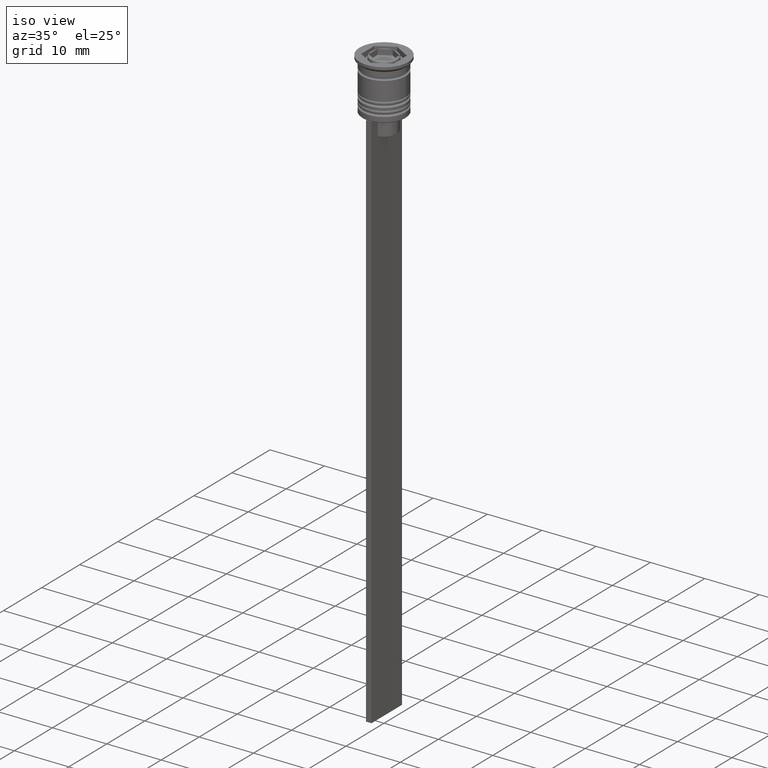
[diagram: clean part render]
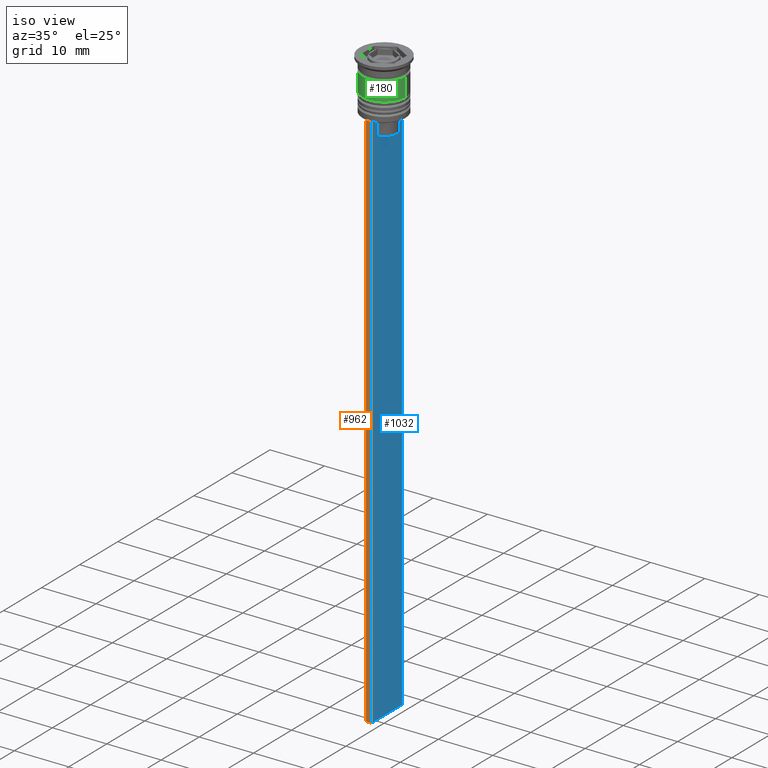
[diagram: same view with three faces highlighted in distinct colors, each labeled with its STEP entity id]
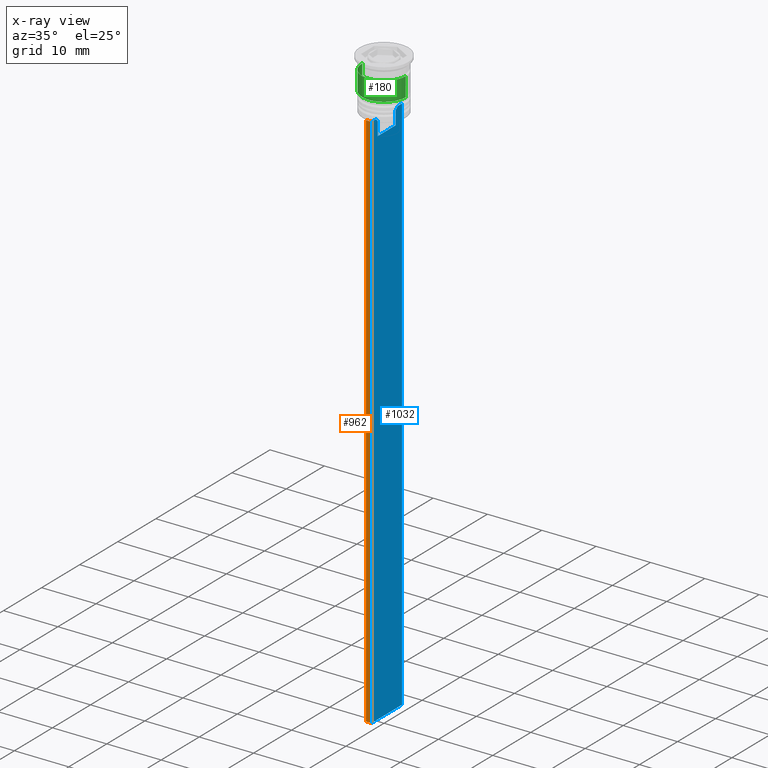
[diagram: x-ray of the same camera — body ghosted, the three highlighted faces saturated]
A machine part, iso view with three faces highlighted in distinct colors.
The next image is the same camera in x-ray (body ghosted, the three faces saturated) — at least one of them is partly hidden behind the body in this view.
Their STEP definitions:

[orange] entity #962 — the highlighted planar face has unit normal (0, -1, -0).
#10 = LINE ( 'NONE', #803, #507 ) ;
#49 = CARTESIAN_POINT ( 'NONE',  ( 0.5000000000000000000, -4.000000000000000000, -1.437742251701450202 ) ) ;
#66 = VERTEX_POINT ( 'NONE', #1998 ) ;
#69 = EDGE_CURVE ( 'NONE', #555, #2411, #2252, .T. ) ;
#112 = DIRECTION ( 'NONE',  ( 0.000000000000000000, 0.000000000000000000, -1.000000000000000000 ) ) ;
#144 = VECTOR ( 'NONE', #287, 1000.000000000000000 ) ;
#151 = DIRECTION ( 'NONE',  ( -1.000000000000000000, 0.000000000000000000, 0.000000000000000000 ) ) ;
#287 = DIRECTION ( 'NONE',  ( 0.000000000000000000, 0.000000000000000000, -1.000000000000000000 ) ) ;
#359 = EDGE_CURVE ( 'NONE', #1882, #555, #10, .T. ) ;
#423 = ORIENTED_EDGE ( 'NONE', *, *, #1094, .T. ) ;
#481 = CARTESIAN_POINT ( 'NONE',  ( -0.5000000000000000000, -4.000000000000000000, -1.437742251701450202 ) ) ;
#507 = VECTOR ( 'NONE', #1550, 1000.000000000000000 ) ;
#509 = ORIENTED_EDGE ( 'NONE', *, *, #1512, .F. ) ;
#518 = CARTESIAN_POINT ( 'NONE',  ( -0.5000000000000000000, -4.000000000000000000, -9.500000000000000000 ) ) ;
#555 = VERTEX_POINT ( 'NONE', #1717 ) ;
#570 = ORIENTED_EDGE ( 'NONE', *, *, #359, .F. ) ;
#622 = VECTOR ( 'NONE', #112, 1000.000000000000000 ) ;
#741 = CARTESIAN_POINT ( 'NONE',  ( 0.5000000000000000000, -4.000000000000000000, -109.5000000000000000 ) ) ;
#803 = CARTESIAN_POINT ( 'NONE',  ( 0.5000000000000000000, -4.000000000000000000, -9.500000000000000000 ) ) ;
#816 = PLANE ( 'NONE',  #1776 ) ;
#885 = LINE ( 'NONE', #481, #144 ) ;
#936 = ORIENTED_EDGE ( 'NONE', *, *, #69, .F. ) ;
#962 = ADVANCED_FACE ( 'NONE', ( #2187 ), #816, .T. ) ;
#1094 = EDGE_CURVE ( 'NONE', #1882, #66, #885, .T. ) ;
#1169 = CARTESIAN_POINT ( 'NONE',  ( 0.5000000000000000000, -4.000000000000000000, -1.437742251701450202 ) ) ;
#1512 = EDGE_CURVE ( 'NONE', #2411, #66, #1909, .T. ) ;
#1550 = DIRECTION ( 'NONE',  ( 1.000000000000000000, 0.000000000000000000, 0.000000000000000000 ) ) ;
#1717 = CARTESIAN_POINT ( 'NONE',  ( 0.5000000000000000000, -4.000000000000000000, -9.500000000000000000 ) ) ;
#1748 = CARTESIAN_POINT ( 'NONE',  ( 0.5000000000000000000, -4.000000000000000000, -109.5000000000000000 ) ) ;
#1776 = AXIS2_PLACEMENT_3D ( 'NONE', #1169, #1995, #1962 ) ;
#1882 = VERTEX_POINT ( 'NONE', #518 ) ;
#1909 = LINE ( 'NONE', #741, #2465 ) ;
#1962 = DIRECTION ( 'NONE',  ( 0.000000000000000000, 0.000000000000000000, -1.000000000000000000 ) ) ;
#1995 = DIRECTION ( 'NONE',  ( 0.000000000000000000, -1.000000000000000000, -0.000000000000000000 ) ) ;
#1998 = CARTESIAN_POINT ( 'NONE',  ( -0.5000000000000000000, -4.000000000000000000, -109.5000000000000000 ) ) ;
#2171 = EDGE_LOOP ( 'NONE', ( #570, #423, #509, #936 ) ) ;
#2187 = FACE_OUTER_BOUND ( 'NONE', #2171, .T. ) ;
#2252 = LINE ( 'NONE', #49, #622 ) ;
#2411 = VERTEX_POINT ( 'NONE', #1748 ) ;
#2465 = VECTOR ( 'NONE', #151, 1000.000000000000000 ) ;

[blue] entity #1032 — the highlighted planar face has unit normal (-1, 0, 0).
#3 = VERTEX_POINT ( 'NONE', #326 ) ;
#11 = CARTESIAN_POINT ( 'NONE',  ( 0.5000000000000000000, -2.347338918861097135, -12.50000000000000000 ) ) ;
#39 = VERTEX_POINT ( 'NONE', #1988 ) ;
#44 = CARTESIAN_POINT ( 'NONE',  ( 0.5000000000000000000, 2.399999999999996803, -12.50000000000000000 ) ) ;
#49 = CARTESIAN_POINT ( 'NONE',  ( 0.5000000000000000000, -4.000000000000000000, -1.437742251701450202 ) ) ;
#69 = EDGE_CURVE ( 'NONE', #555, #2411, #2252, .T. ) ;
#75 = ORIENTED_EDGE ( 'NONE', *, *, #69, .T. ) ;
#101 = EDGE_CURVE ( 'NONE', #461, #125, #1936, .T. ) ;
#112 = DIRECTION ( 'NONE',  ( 0.000000000000000000, 0.000000000000000000, -1.000000000000000000 ) ) ;
#125 = VERTEX_POINT ( 'NONE', #954 ) ;
#186 = LINE ( 'NONE', #810, #2433 ) ;
#189 = CARTESIAN_POINT ( 'NONE',  ( 0.5000000000000000000, 2.347338918861097135, 0.000000000000000000 ) ) ;
#240 = DIRECTION ( 'NONE',  ( 0.000000000000000000, 1.000000000000000000, 0.000000000000000000 ) ) ;
#261 = EDGE_CURVE ( 'NONE', #2163, #555, #447, .T. ) ;
#265 = B_SPLINE_CURVE_WITH_KNOTS ( 'NONE', 3,
 ( #1452, #523, #861, #1285 ),
 .UNSPECIFIED., .F., .F.,
 ( 4, 4 ),
 ( 0.004956812174141191595, 0.005670477137898149653 ),
 .UNSPECIFIED. ) ;
#280 = DIRECTION ( 'NONE',  ( 0.000000000000000000, -1.000000000000000000, 0.000000000000000000 ) ) ;
#289 = CARTESIAN_POINT ( 'NONE',  ( 0.5000000000000000000, -4.000000000000000000, -9.500000000000000000 ) ) ;
#315 = VECTOR ( 'NONE', #1324, 1000.000000000000000 ) ;
#326 = CARTESIAN_POINT ( 'NONE',  ( 0.5000000000000000000, 2.856571371417138572, -9.500000000000000000 ) ) ;
#327 = EDGE_CURVE ( 'NONE', #1827, #1343, #1888, .T. ) ;
#371 = LINE ( 'NONE', #2334, #315 ) ;
#379 = EDGE_CURVE ( 'NONE', #2411, #39, #1185, .T. ) ;
#404 = EDGE_CURVE ( 'NONE', #125, #2259, #1798, .T. ) ;
#416 = DIRECTION ( 'NONE',  ( -1.000000000000000000, 0.000000000000000000, 0.000000000000000000 ) ) ;
#420 = EDGE_CURVE ( 'NONE', #2259, #1827, #489, .T. ) ;
#447 = LINE ( 'NONE', #636, #2511 ) ;
#461 = VERTEX_POINT ( 'NONE', #1060 ) ;
#489 = LINE ( 'NONE', #1863, #1773 ) ;
#523 = CARTESIAN_POINT ( 'NONE',  ( 0.5000000000000000000, 2.687094542495898075, -9.666938847453439010 ) ) ;
#533 = ORIENTED_EDGE ( 'NONE', *, *, #735, .T. ) ;
#555 = VERTEX_POINT ( 'NONE', #1717 ) ;
#599 = ORIENTED_EDGE ( 'NONE', *, *, #2161, .T. ) ;
#622 = VECTOR ( 'NONE', #112, 1000.000000000000000 ) ;
#636 = CARTESIAN_POINT ( 'NONE',  ( 0.5000000000000000000, -4.000000000000000000, -9.500000000000000000 ) ) ;
#690 = DIRECTION ( 'NONE',  ( -0.000000000000000000, -0.000000000000000000, 1.000000000000000000 ) ) ;
#735 = EDGE_CURVE ( 'NONE', #1250, #2327, #186, .T. ) ;
#758 = VECTOR ( 'NONE', #280, 1000.000000000000000 ) ;
#810 = CARTESIAN_POINT ( 'NONE',  ( 0.5000000000000000000, -4.000000000000000000, -9.500000000000000000 ) ) ;
#822 = ORIENTED_EDGE ( 'NONE', *, *, #2135, .T. ) ;
#838 = CARTESIAN_POINT ( 'NONE',  ( 0.5000000000000000000, 3.867815921162741422, -9.500000000000000000 ) ) ;
#861 = CARTESIAN_POINT ( 'NONE',  ( 0.5000000000000000000, 2.517407211010872281, -9.833663366238582171 ) ) ;
#877 = EDGE_LOOP ( 'NONE', ( #822, #599, #1871, #2017, #2311, #1383, #1286, #1893, #75, #1463, #2115, #533 ) ) ;
#908 = VECTOR ( 'NONE', #2290, 1000.000000000000000 ) ;
#921 = CARTESIAN_POINT ( 'NONE',  ( 0.5000000000000000000, 4.000000000000000000, -9.500000000000000000 ) ) ;
#954 = CARTESIAN_POINT ( 'NONE',  ( 0.5000000000000000000, 2.347338918861097135, -12.50000000000000000 ) ) ;
#976 = CARTESIAN_POINT ( 'NONE',  ( 0.5000000000000000000, -2.687095498514037839, -9.666937905752043037 ) ) ;
#1002 = CARTESIAN_POINT ( 'NONE',  ( 0.5000000000000000000, -2.347338918861097135, -10.00000000000000000 ) ) ;
#1020 = CARTESIAN_POINT ( 'NONE',  ( 0.5000000000000000000, -2.347338918861097135, -10.00000000000000000 ) ) ;
#1032 = ADVANCED_FACE ( 'NONE', ( #2344 ), #1410, .F. ) ;
#1056 = DIRECTION ( 'NONE',  ( 0.000000000000000000, -1.000000000000000000, 0.000000000000000000 ) ) ;
#1060 = CARTESIAN_POINT ( 'NONE',  ( 0.5000000000000000000, 2.347338918861097135, -10.00000000000000000 ) ) ;
#1185 = LINE ( 'NONE', #1788, #1474 ) ;
#1222 = VECTOR ( 'NONE', #1352, 1000.000000000000000 ) ;
#1250 = VERTEX_POINT ( 'NONE', #921 ) ;
#1285 = CARTESIAN_POINT ( 'NONE',  ( 0.5000000000000000000, 2.347338918861097135, -10.00000000000000000 ) ) ;
#1286 = ORIENTED_EDGE ( 'NONE', *, *, #1663, .T. ) ;
#1324 = DIRECTION ( 'NONE',  ( 0.000000000000000000, 0.000000000000000000, -1.000000000000000000 ) ) ;
#1342 = VECTOR ( 'NONE', #1056, 1000.000000000000000 ) ;
#1343 = VERTEX_POINT ( 'NONE', #2237 ) ;
#1352 = DIRECTION ( 'NONE',  ( 0.000000000000000000, -1.000000000000000000, 0.000000000000000000 ) ) ;
#1375 = CARTESIAN_POINT ( 'NONE',  ( 0.5000000000000000000, -2.517408374291112416, -9.833662228483172285 ) ) ;
#1383 = ORIENTED_EDGE ( 'NONE', *, *, #327, .T. ) ;
#1397 = CARTESIAN_POINT ( 'NONE',  ( 0.5000000000000000000, -4.000000000000000000, -1.437742251701450202 ) ) ;
#1410 = PLANE ( 'NONE',  #1605 ) ;
#1452 = CARTESIAN_POINT ( 'NONE',  ( 0.5000000000000000000, 2.856571371417138572, -9.500000000000000000 ) ) ;
#1463 = ORIENTED_EDGE ( 'NONE', *, *, #379, .T. ) ;
#1474 = VECTOR ( 'NONE', #240, 1000.000000000000000 ) ;
#1560 = DIRECTION ( 'NONE',  ( 0.000000000000000000, -1.000000000000000000, 0.000000000000000000 ) ) ;
#1605 = AXIS2_PLACEMENT_3D ( 'NONE', #1397, #416, #1800 ) ;
#1663 = EDGE_CURVE ( 'NONE', #1343, #2163, #2029, .T. ) ;
#1717 = CARTESIAN_POINT ( 'NONE',  ( 0.5000000000000000000, -4.000000000000000000, -9.500000000000000000 ) ) ;
#1748 = CARTESIAN_POINT ( 'NONE',  ( 0.5000000000000000000, -4.000000000000000000, -109.5000000000000000 ) ) ;
#1773 = VECTOR ( 'NONE', #690, 1000.000000000000000 ) ;
#1788 = CARTESIAN_POINT ( 'NONE',  ( 0.5000000000000000000, -4.000000000000000000, -109.5000000000000000 ) ) ;
#1798 = LINE ( 'NONE', #44, #1222 ) ;
#1800 = DIRECTION ( 'NONE',  ( 0.000000000000000000, 0.000000000000000000, 1.000000000000000000 ) ) ;
#1827 = VERTEX_POINT ( 'NONE', #1002 ) ;
#1863 = CARTESIAN_POINT ( 'NONE',  ( 0.5000000000000000000, -2.347338918861097135, 0.000000000000000000 ) ) ;
#1871 = ORIENTED_EDGE ( 'NONE', *, *, #101, .T. ) ;
#1888 = B_SPLINE_CURVE_WITH_KNOTS ( 'NONE', 3,
 ( #1020, #1375, #976, #1961 ),
 .UNSPECIFIED., .F., .F.,
 ( 4, 4 ),
 ( 0.01178336557230038467, 0.01249758354768160280 ),
 .UNSPECIFIED. ) ;
#1893 = ORIENTED_EDGE ( 'NONE', *, *, #261, .T. ) ;
#1936 = LINE ( 'NONE', #189, #908 ) ;
#1961 = CARTESIAN_POINT ( 'NONE',  ( 0.5000000000000000000, -2.856571371417138572, -9.500000000000000000 ) ) ;
#1984 = DIRECTION ( 'NONE',  ( 0.000000000000000000, -1.000000000000000000, 0.000000000000000000 ) ) ;
#1988 = CARTESIAN_POINT ( 'NONE',  ( 0.5000000000000000000, 4.000000000000000000, -109.5000000000000000 ) ) ;
#2017 = ORIENTED_EDGE ( 'NONE', *, *, #404, .T. ) ;
#2029 = LINE ( 'NONE', #289, #1342 ) ;
#2057 = CARTESIAN_POINT ( 'NONE',  ( 0.5000000000000000000, -4.000000000000000000, -9.500000000000000000 ) ) ;
#2102 = EDGE_CURVE ( 'NONE', #1250, #39, #371, .T. ) ;
#2115 = ORIENTED_EDGE ( 'NONE', *, *, #2102, .F. ) ;
#2135 = EDGE_CURVE ( 'NONE', #2327, #3, #2443, .T. ) ;
#2161 = EDGE_CURVE ( 'NONE', #3, #461, #265, .T. ) ;
#2163 = VERTEX_POINT ( 'NONE', #2246 ) ;
#2237 = CARTESIAN_POINT ( 'NONE',  ( 0.5000000000000000000, -2.856571371417138572, -9.500000000000000000 ) ) ;
#2246 = CARTESIAN_POINT ( 'NONE',  ( 0.5000000000000000000, -3.867815921162741422, -9.500000000000000000 ) ) ;
#2252 = LINE ( 'NONE', #49, #622 ) ;
#2259 = VERTEX_POINT ( 'NONE', #11 ) ;
#2290 = DIRECTION ( 'NONE',  ( 0.000000000000000000, 0.000000000000000000, -1.000000000000000000 ) ) ;
#2311 = ORIENTED_EDGE ( 'NONE', *, *, #420, .T. ) ;
#2327 = VERTEX_POINT ( 'NONE', #838 ) ;
#2334 = CARTESIAN_POINT ( 'NONE',  ( 0.5000000000000000000, 4.000000000000000000, -1.437742251701450202 ) ) ;
#2344 = FACE_OUTER_BOUND ( 'NONE', #877, .T. ) ;
#2411 = VERTEX_POINT ( 'NONE', #1748 ) ;
#2433 = VECTOR ( 'NONE', #1560, 1000.000000000000000 ) ;
#2443 = LINE ( 'NONE', #2057, #758 ) ;
#2511 = VECTOR ( 'NONE', #1984, 1000.000000000000000 ) ;

[green] entity #180 — the highlighted cylindrical surface (edge-blend (fillet) strip) has radius 4 mm, axis along (-0, -0, 1).
#164 = DIRECTION ( 'NONE',  ( 1.000000000000000000, 0.000000000000000000, 0.000000000000000000 ) ) ;
#180 = ADVANCED_FACE ( 'NONE', ( #2534 ), #2524, .T. ) ;
#301 = DIRECTION ( 'NONE',  ( 1.000000000000000000, 0.000000000000000000, 0.000000000000000000 ) ) ;
#307 = CARTESIAN_POINT ( 'NONE',  ( -4.000000000000000000, 4.898587196589412829E-16, -2.500000000000000000 ) ) ;
#365 = CARTESIAN_POINT ( 'NONE',  ( 0.000000000000000000, 0.000000000000000000, 0.000000000000000000 ) ) ;
#431 = DIRECTION ( 'NONE',  ( -0.000000000000000000, -0.000000000000000000, 1.000000000000000000 ) ) ;
#445 = CARTESIAN_POINT ( 'NONE',  ( 0.000000000000000000, 0.000000000000000000, -6.000000000000000000 ) ) ;
#498 = VERTEX_POINT ( 'NONE', #307 ) ;
#519 = VECTOR ( 'NONE', #2036, 1000.000000000000000 ) ;
#541 = DIRECTION ( 'NONE',  ( -0.000000000000000000, -0.000000000000000000, 1.000000000000000000 ) ) ;
#619 = EDGE_LOOP ( 'NONE', ( #802, #2114, #915, #1175 ) ) ;
#657 = VERTEX_POINT ( 'NONE', #2519 ) ;
#697 = DIRECTION ( 'NONE',  ( -0.000000000000000000, -0.000000000000000000, 1.000000000000000000 ) ) ;
#775 = EDGE_CURVE ( 'NONE', #2147, #1466, #1395, .T. ) ;
#802 = ORIENTED_EDGE ( 'NONE', *, *, #1695, .F. ) ;
#915 = ORIENTED_EDGE ( 'NONE', *, *, #1356, .T. ) ;
#967 = DIRECTION ( 'NONE',  ( -0.000000000000000000, -0.000000000000000000, 1.000000000000000000 ) ) ;
#989 = AXIS2_PLACEMENT_3D ( 'NONE', #445, #431, #2531 ) ;
#1086 = CARTESIAN_POINT ( 'NONE',  ( -4.000000000000000888, 4.898587196589413815E-16, -6.000000000000000000 ) ) ;
#1175 = ORIENTED_EDGE ( 'NONE', *, *, #1926, .F. ) ;
#1356 = EDGE_CURVE ( 'NONE', #1466, #657, #2418, .T. ) ;
#1395 = CIRCLE ( 'NONE', #989, 4.000000000000000888 ) ;
#1432 = CARTESIAN_POINT ( 'NONE',  ( 4.000000000000000000, 0.000000000000000000, 0.000000000000000000 ) ) ;
#1466 = VERTEX_POINT ( 'NONE', #1899 ) ;
#1499 = CARTESIAN_POINT ( 'NONE',  ( 0.000000000000000000, 0.000000000000000000, -2.500000000000000000 ) ) ;
#1695 = EDGE_CURVE ( 'NONE', #2147, #498, #2452, .T. ) ;
#1807 = AXIS2_PLACEMENT_3D ( 'NONE', #365, #967, #164 ) ;
#1879 = CARTESIAN_POINT ( 'NONE',  ( -4.000000000000000000, 4.898587196589412829E-16, 0.000000000000000000 ) ) ;
#1899 = CARTESIAN_POINT ( 'NONE',  ( 4.000000000000000888, 0.000000000000000000, -6.000000000000000000 ) ) ;
#1926 = EDGE_CURVE ( 'NONE', #498, #657, #2477, .T. ) ;
#2036 = DIRECTION ( 'NONE',  ( -0.000000000000000000, -0.000000000000000000, 1.000000000000000000 ) ) ;
#2114 = ORIENTED_EDGE ( 'NONE', *, *, #775, .T. ) ;
#2144 = AXIS2_PLACEMENT_3D ( 'NONE', #1499, #541, #301 ) ;
#2147 = VERTEX_POINT ( 'NONE', #1086 ) ;
#2418 = LINE ( 'NONE', #1432, #519 ) ;
#2424 = VECTOR ( 'NONE', #697, 1000.000000000000000 ) ;
#2452 = LINE ( 'NONE', #1879, #2424 ) ;
#2477 = CIRCLE ( 'NONE', #2144, 4.000000000000000000 ) ;
#2519 = CARTESIAN_POINT ( 'NONE',  ( 4.000000000000000000, 0.000000000000000000, -2.500000000000000000 ) ) ;
#2524 = CYLINDRICAL_SURFACE ( 'NONE', #1807, 4.000000000000000000 ) ;
#2531 = DIRECTION ( 'NONE',  ( 1.000000000000000000, 0.000000000000000000, 0.000000000000000000 ) ) ;
#2534 = FACE_OUTER_BOUND ( 'NONE', #619, .T. ) ;